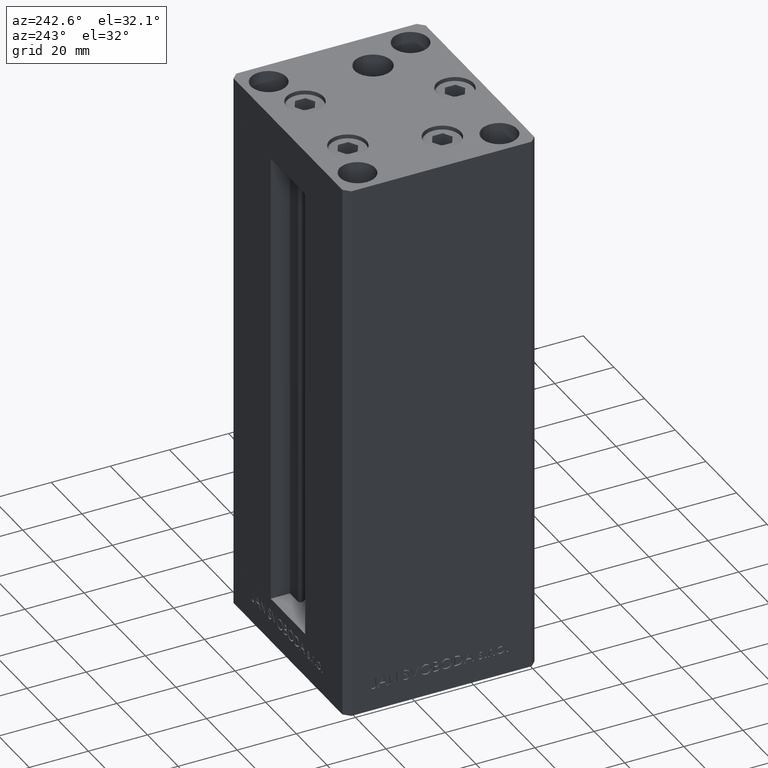
[diagram: clean part render]
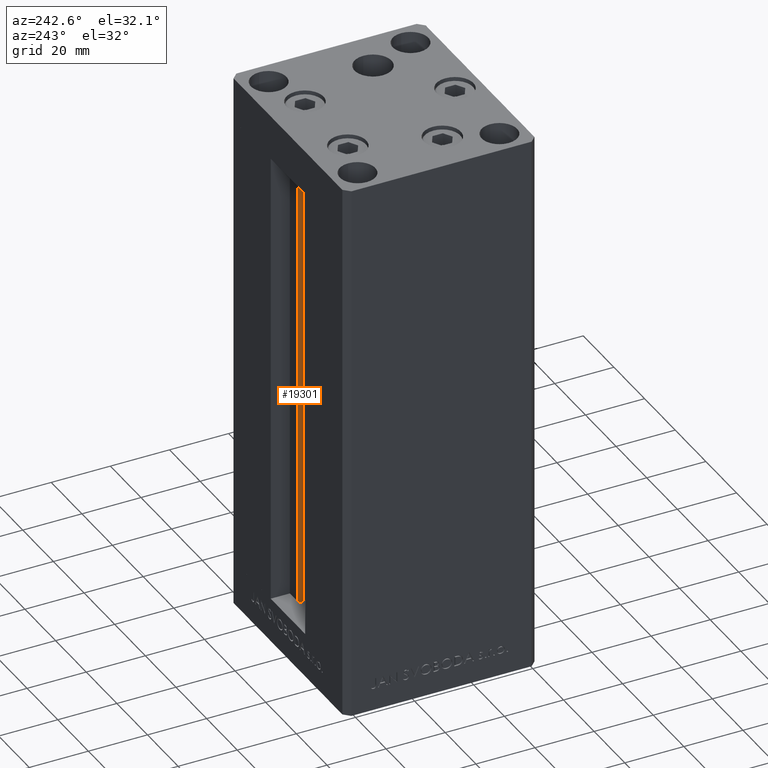
[diagram: same view with one face highlighted and labeled with its STEP entity id]
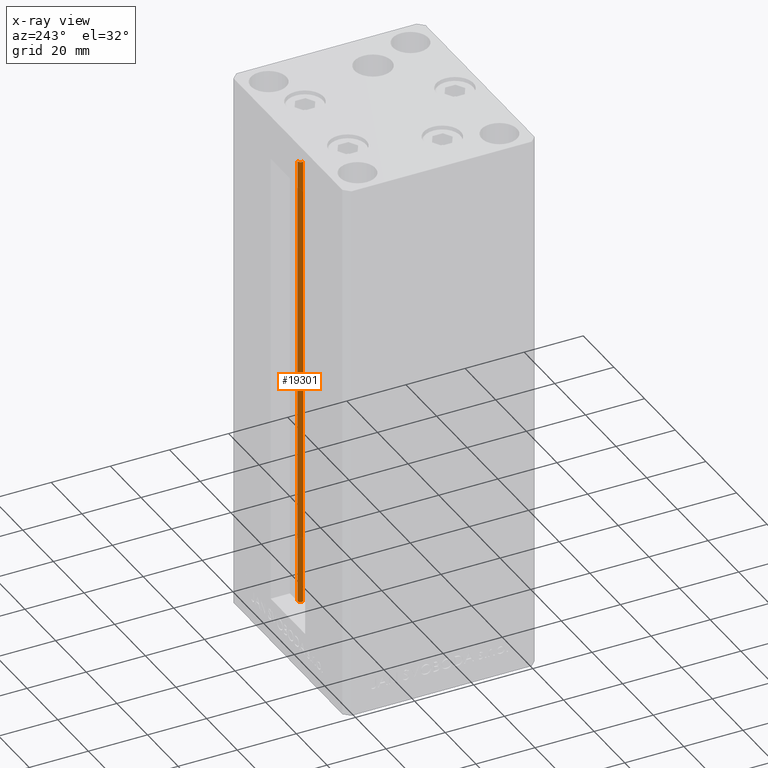
[diagram: x-ray of the same camera — body ghosted, the highlighted face saturated]
A machine part, auxiliary view. The second image highlights one B-rep face of the part: STEP entity #19301.
The next image is the same camera in x-ray: the body ghosted, the highlighted face saturated — about 0% of this face is hidden behind the body in this view.
In plain terms, the highlighted cylindrical surface (edge-blend (fillet) strip) has radius 0.9333 mm, axis along (0, 0, 1).
Its self-contained STEP definition (entity closure, byte-faithful):
#170 = ORIENTED_EDGE ( 'NONE', *, *, #32089, .F. ) ;
#1865 = CARTESIAN_POINT ( 'NONE',  ( 6.183333333334001480, 25.06666666666599141, 156.0000000000000000 ) ) ;
#4120 = ORIENTED_EDGE ( 'NONE', *, *, #21327, .T. ) ;
#9832 = DIRECTION ( 'NONE',  ( 1.000000000000000000, 0.000000000000000000, 0.000000000000000000 ) ) ;
#11095 = AXIS2_PLACEMENT_3D ( 'NONE', #1865, #43171, #16701 ) ;
#12241 = EDGE_CURVE ( 'NONE', #30809, #23023, #33098, .T. ) ;
#15827 = CIRCLE ( 'NONE', #11095, 0.9333333333340008142 ) ;
#16598 = AXIS2_PLACEMENT_3D ( 'NONE', #25260, #48267, #29223 ) ;
#16701 = DIRECTION ( 'NONE',  ( 1.000000000000000000, 0.000000000000000000, 0.000000000000000000 ) ) ;
#17580 = FACE_OUTER_BOUND ( 'NONE', #32046, .T. ) ;
#17653 = ORIENTED_EDGE ( 'NONE', *, *, #12241, .F. ) ;
#19301 = ADVANCED_FACE ( 'NONE', ( #17580 ), #36644, .T. ) ;
#20014 = VECTOR ( 'NONE', #31299, 1000.000000000000000 ) ;
#20690 = EDGE_CURVE ( 'NONE', #30809, #22383, #31444, .T. ) ;
#20781 = DIRECTION ( 'NONE',  ( -0.000000000000000000, -0.000000000000000000, 1.000000000000000000 ) ) ;
#21327 = EDGE_CURVE ( 'NONE', #22383, #43244, #15827, .T. ) ;
#21819 = ORIENTED_EDGE ( 'NONE', *, *, #20690, .T. ) ;
#22383 = VERTEX_POINT ( 'NONE', #42703 ) ;
#23023 = VERTEX_POINT ( 'NONE', #25200 ) ;
#24189 = CARTESIAN_POINT ( 'NONE',  ( 6.183333333334001480, 25.06666666666599141, 0.000000000000000000 ) ) ;
#25200 = CARTESIAN_POINT ( 'NONE',  ( 6.183333333334001480, 25.99999999999999289, 0.000000000000000000 ) ) ;
#25260 = CARTESIAN_POINT ( 'NONE',  ( 6.183333333334001480, 25.06666666666599141, 0.000000000000000000 ) ) ;
#29223 = DIRECTION ( 'NONE',  ( 1.000000000000000000, 0.000000000000000000, 0.000000000000000000 ) ) ;
#29297 = VECTOR ( 'NONE', #20781, 1000.000000000000000 ) ;
#29629 = CARTESIAN_POINT ( 'NONE',  ( 6.183333333334001480, 25.99999999999999289, 156.0000000000000000 ) ) ;
#30809 = VERTEX_POINT ( 'NONE', #42127 ) ;
#31062 = LINE ( 'NONE', #42431, #20014 ) ;
#31299 = DIRECTION ( 'NONE',  ( -0.000000000000000000, -0.000000000000000000, 1.000000000000000000 ) ) ;
#31444 = LINE ( 'NONE', #42808, #29297 ) ;
#32046 = EDGE_LOOP ( 'NONE', ( #170, #17653, #21819, #4120 ) ) ;
#32089 = EDGE_CURVE ( 'NONE', #23023, #43244, #31062, .T. ) ;
#32259 = AXIS2_PLACEMENT_3D ( 'NONE', #24189, #32365, #9832 ) ;
#32365 = DIRECTION ( 'NONE',  ( -0.000000000000000000, -0.000000000000000000, -1.000000000000000000 ) ) ;
#33098 = CIRCLE ( 'NONE', #32259, 0.9333333333340008142 ) ;
#36644 = CYLINDRICAL_SURFACE ( 'NONE', #16598, 0.9333333333340008142 ) ;
#42127 = CARTESIAN_POINT ( 'NONE',  ( 5.375042956467947164, 24.59999999999899245, 0.000000000000000000 ) ) ;
#42431 = CARTESIAN_POINT ( 'NONE',  ( 6.183333333334001480, 25.99999999999999289, 0.000000000000000000 ) ) ;
#42703 = CARTESIAN_POINT ( 'NONE',  ( 5.375042956467948052, 24.59999999999899245, 156.0000000000000000 ) ) ;
#42808 = CARTESIAN_POINT ( 'NONE',  ( 5.375042956467947164, 24.59999999999899245, 0.000000000000000000 ) ) ;
#43171 = DIRECTION ( 'NONE',  ( 0.000000000000000000, 0.000000000000000000, -1.000000000000000000 ) ) ;
#43244 = VERTEX_POINT ( 'NONE', #29629 ) ;
#48267 = DIRECTION ( 'NONE',  ( -0.000000000000000000, -0.000000000000000000, 1.000000000000000000 ) ) ;